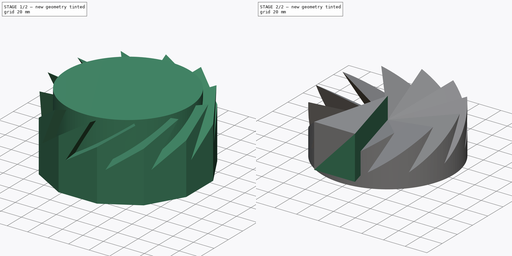
[diagram: build sequence overview — one tinted view per stage of 2, left to right]
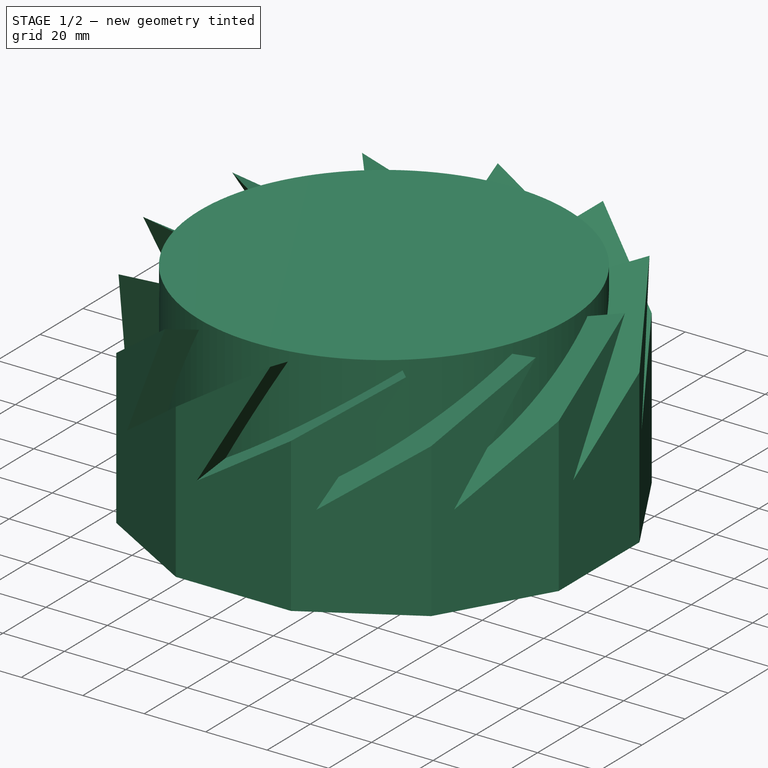
[diagram: stage 1 of 2 — iso view after this stage's code; geometry added in this stage tinted green]
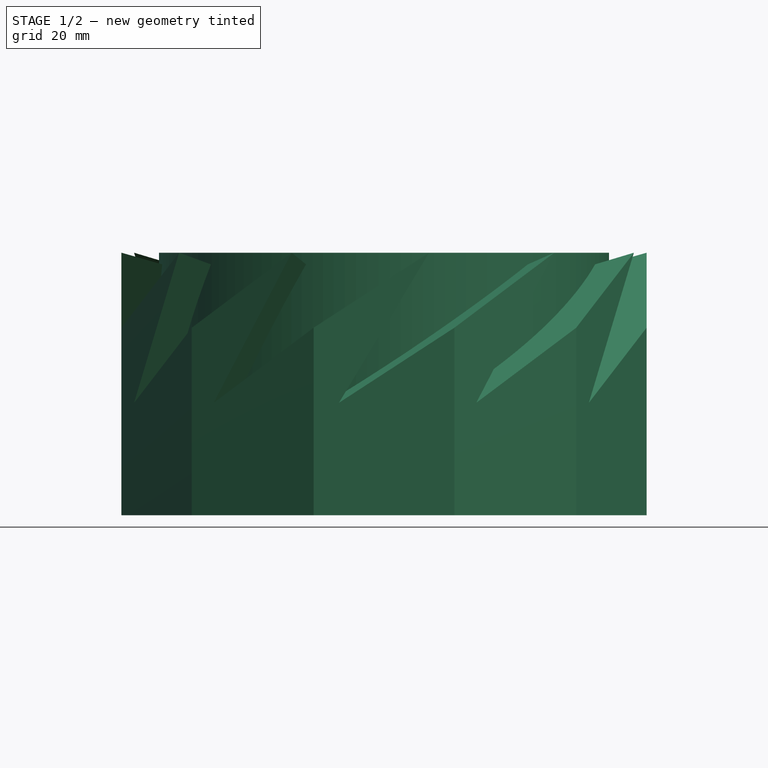
[diagram: stage 1 of 2 — front view after this stage's code; geometry added in this stage tinted green]
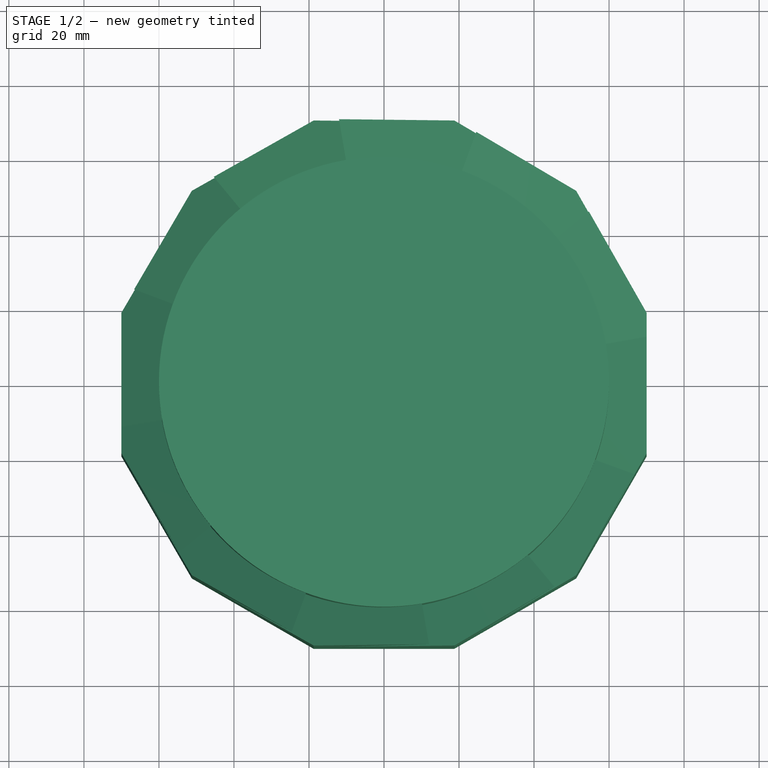
[diagram: stage 1 of 2 — top view after this stage's code; geometry added in this stage tinted green]
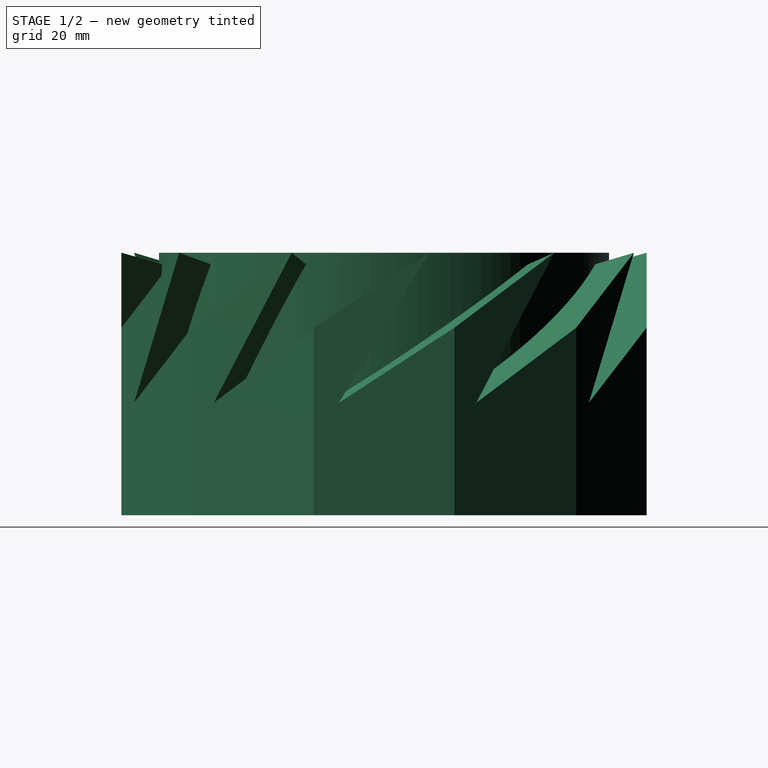
[diagram: stage 1 of 2 — right view after this stage's code; geometry added in this stage tinted green]
FCSTD DOCUMENT  (FreeCAD 0.16R5747 (Git))
Label: CrownCommon
License: All rights reserved
LicenseURL: http://en.wikipedia.org/wiki/All_rights_reserved
objects: Part::Part2DObjectPython×6, Part::Feature×6, Sketcher::SketchObject×2, Part::FeaturePython×2, PartDesign::Pad×1, Part::Loft×1, Part::Cylinder×1, Part::MultiCommon×1
note: 21 computed .brp shape members not serialized (recipe doc carries the construction recipe); baked Part::Feature solids carry a one-line shape summary decoded from their .brp

FEATURE [Sketcher::SketchObject] Sketch001
  ExternalGeometry = -> [Pad]
  Placement = pos=(0,-70,0) rot=(1,0,0;1.5708rad)
  Support = -> Pad [Face2]
  sketch-geometry (3):
    g0: LineSegment StartX=-18.7564 StartY=0 StartZ=0 EndX=12 EndY=20 EndZ=0
    g1: LineSegment StartX=12 StartY=20 StartZ=0 EndX=-12 EndY=-20 EndZ=0
    g2: LineSegment StartX=-12 StartY=-20 StartZ=0 EndX=18.7564 EndY=0 EndZ=0
  constraints (7):
    c: Coincident(g0,g1)
    c: Coincident(g1,g2)
    c: Symmetric(g-3,g-3,g0)
    c: Symmetric(g-4,g-4,g2)
    c: Symmetric(g0,g1,g-1)
    c: PointOnObject(g1,g-5)
    c: DistanceX(g-1,g0) = 12
FEATURE [Part::FeaturePython] Point  # WARN: FeaturePython — macro-defined, semantics opaque (R4)
  X = 0
  Y = 0
  Z = 0
FEATURE [Part::Loft] Loft
  Closed = false
  Ruled = true
  Sections = -> [Sketch001,Point]
  Solid = false
FEATURE [Part::Part2DObjectPython] Line  # Draft 2D object (typed FeaturePython)
  ChamferSize = 0
  Closed = false
  End = (-18.7564,-70,-50)
  FilletRadius = 0
  Length = 50
  MakeFace = false
  Points = (2) [(-18.7564,-70,-6.66134e-16),(-18.7564,-70,-50)]
  Start = (-18.7564,-70,0)
FEATURE [Part::Part2DObjectPython] Line001  # Draft 2D object (typed FeaturePython)
  ChamferSize = 0
  Closed = false
  End = (18.7564,-70,-50)
  FilletRadius = 0
  Length = 50
  MakeFace = false
  Points = (2) [(18.7564,-70,3.55271e-15),(18.7564,-70,-50)]
  Start = (18.7564,-70,0)
FEATURE [Part::Part2DObjectPython] Line002  # Draft 2D object (typed FeaturePython)
  ChamferSize = 0
  Closed = false
  End = (18.7564,-70,-50)
  FilletRadius = 0
  Length = 37.5129
  MakeFace = false
  Points = (2) [(-18.7564,-70,-50),(18.7564,-70,-50)]
  Start = (-18.7564,-70,-50)
FEATURE [Part::Part2DObjectPython] Line003  # Draft 2D object (typed FeaturePython)
  ChamferSize = 0
  Closed = false
  End = (0,0,-50)
  FilletRadius = 0
  Length = 50
  MakeFace = false
  Points = (2) [(-7.10543e-15,0,0),(-7.10543e-15,0,-50)]
  Start = (0,0,0)
FEATURE [Part::Part2DObjectPython] Line004  # Draft 2D object (typed FeaturePython)
  ChamferSize = 0
  Closed = false
  End = (-18.7564,-70,-50)
  FilletRadius = 0
  Length = 72.4693
  MakeFace = false
  Points = (2) [(-7.10543e-15,0,-50),(-18.7564,-70,-50)]
  Start = (0,0,-50)
FEATURE [Part::Part2DObjectPython] Line005  # Draft 2D object (typed FeaturePython)
  ChamferSize = 0
  Closed = false
  End = (18.7564,-70,-50)
  FilletRadius = 0
  Length = 72.4693
  MakeFace = false
  Points = (2) [(-7.10543e-15,0,-50),(18.7564,-70,-50)]
  Start = (0,0,-50)
FEATURE [Part::Feature] Face
  shape: bbox 37.51 x 2e-07 x 70 mm, 1 faces, 0 solids (baked)
FEATURE [Part::Feature] Face001
  shape: bbox 37.51 x 70 x 2e-07 mm, 1 faces, 0 solids (baked)
FEATURE [Part::Feature] Face002
  shape: bbox 18.76 x 70 x 50 mm, 1 faces, 0 solids (baked)
FEATURE [Part::Feature] Face003
  shape: bbox 18.76 x 70 x 50 mm, 1 faces, 0 solids (baked)
FEATURE [Part::Feature] Shell
  shape: bbox 37.51 x 70 x 70 mm, 7 faces, 0 solids (baked)
FEATURE [Part::Feature] Solid
  shape: bbox 37.51 x 70 x 70 mm, 7 faces (baked)
FEATURE [Part::FeaturePython] Array  # Draft array (typed FeaturePython)
  Angle = 360
  ArrayType = 1
  Axis = (0,0,1)
  Base = -> Solid
  Center = (0,0,0)
  Fuse = true
  IntervalAxis = (0,0,0)
  IntervalX = (1,0,0)
  IntervalY = (0,1,0)
  IntervalZ = (0,0,0)
  NumberPolar = 12
  NumberX = 2
  NumberY = 2
  NumberZ = 1
FEATURE [Part::Cylinder] Cylinder
  Angle = 360
  Height = 50
  Placement = pos=(0,0,-30) rot=(0,0,1;0rad)
  Radius = 60
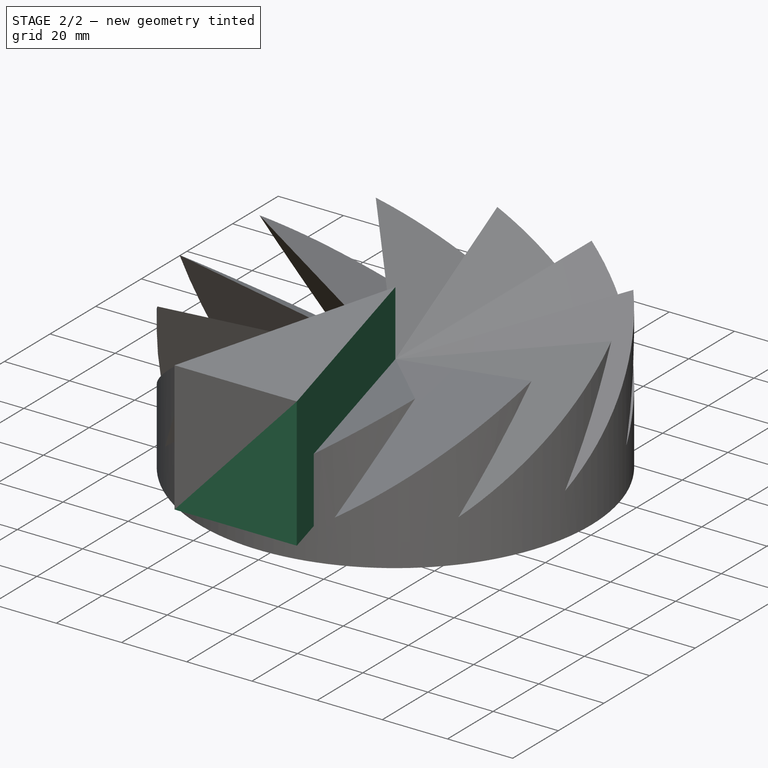
[diagram: stage 2 of 2 — iso view after this stage's code; geometry added in this stage tinted green]
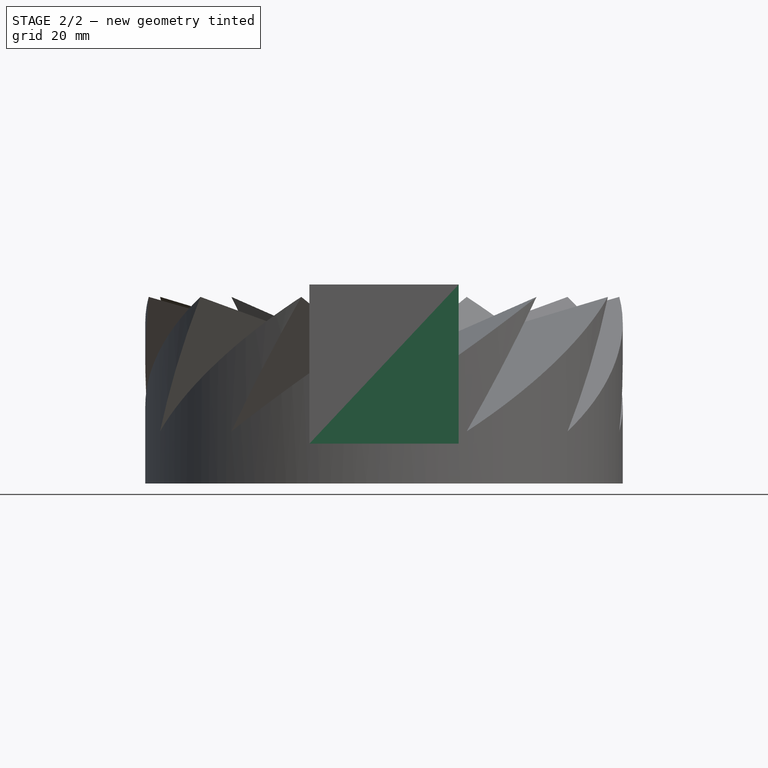
[diagram: stage 2 of 2 — front view after this stage's code; geometry added in this stage tinted green]
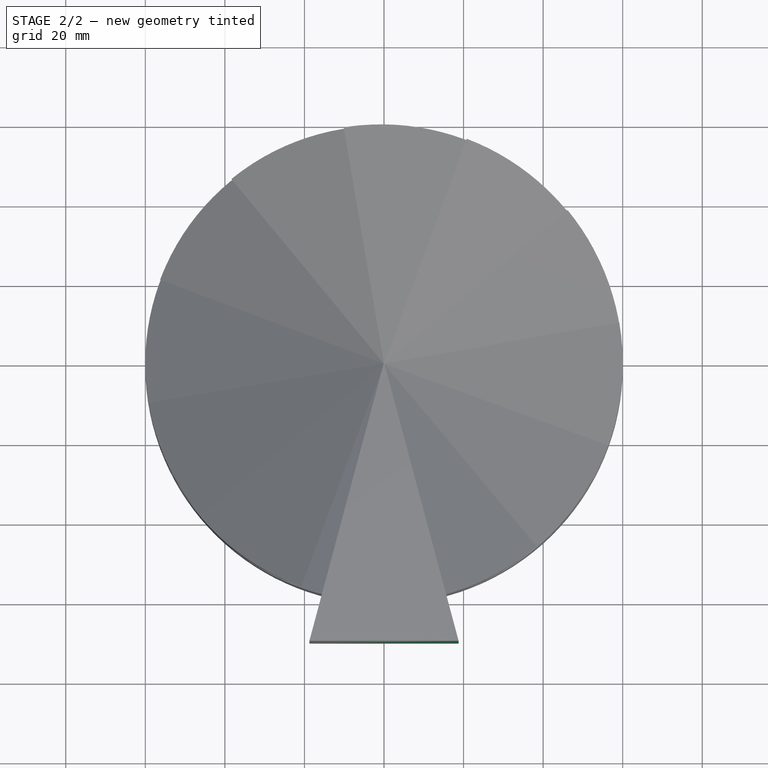
[diagram: stage 2 of 2 — top view after this stage's code; geometry added in this stage tinted green]
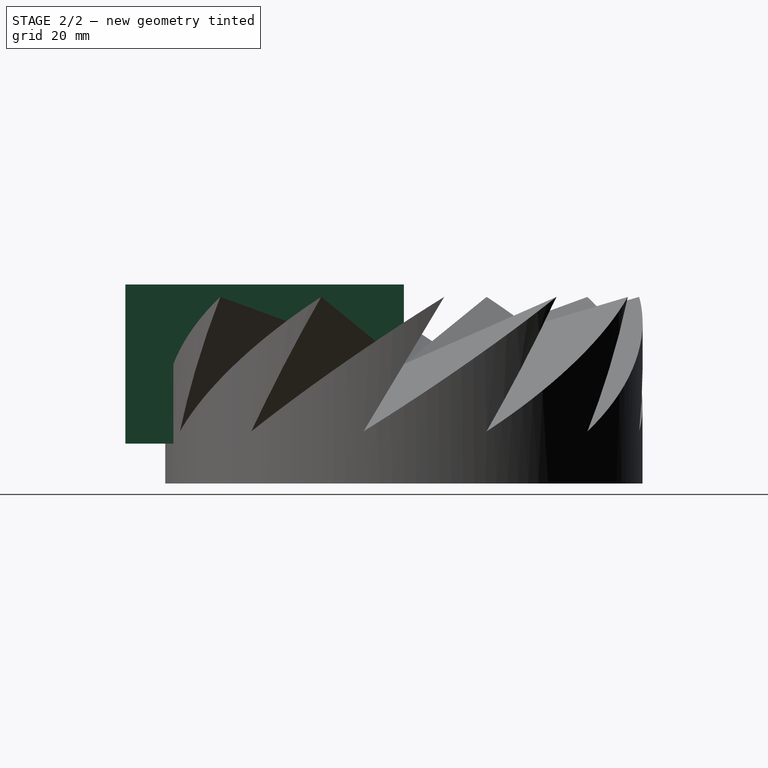
[diagram: stage 2 of 2 — right view after this stage's code; geometry added in this stage tinted green]
FEATURE [Sketcher::SketchObject] Sketch
  sketch-geometry (3):
    g0: LineSegment StartX=0 StartY=0 StartZ=0 EndX=-18.7564 EndY=-70 EndZ=0
    g1: LineSegment StartX=-18.7564 StartY=-70 StartZ=0 EndX=18.7564 EndY=-70 EndZ=0
    g2: LineSegment StartX=18.7564 StartY=-70 StartZ=0 EndX=0 EndY=0 EndZ=0
  constraints (8):
    c: Coincident(g0,g-1)
    c: Coincident(g1,g0)
    c: Horizontal(g1)
    c: Coincident(g2,g1)
    c: Coincident(g2,g-1)
    c: Symmetric(g0,g1,g-2)
    c: DistanceY(g-1,g1) = -70
    c: Angle(g1,g0) = 1.309
FEATURE [PartDesign::Pad] Pad
  Length = 40
  Length2 = 100
  Midplane = true
  Sketch = -> Sketch
  Type = 0
FEATURE [Part::MultiCommon] Common
  Shapes = -> [Array,Cylinder]
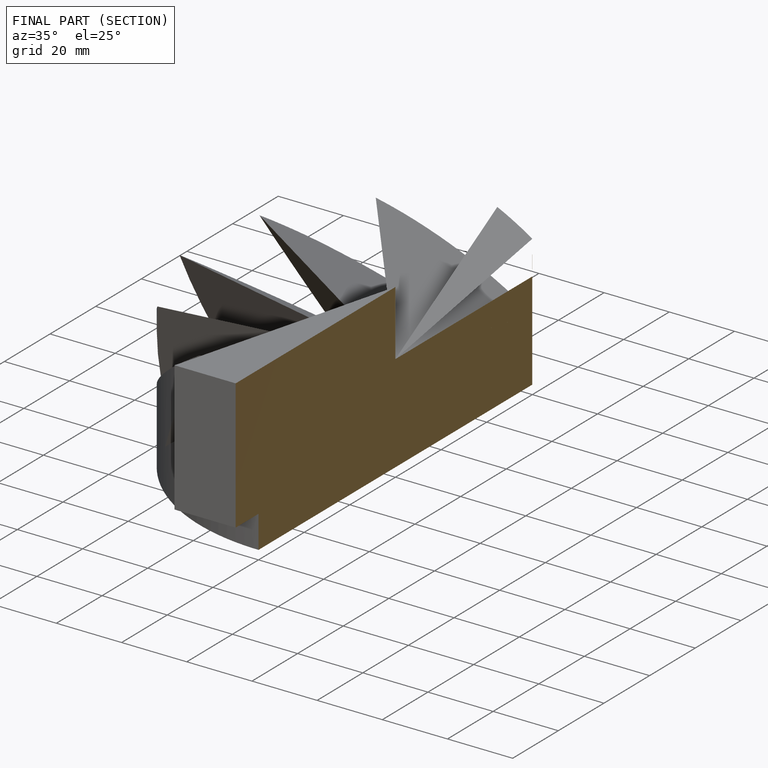
[diagram: finished part — half-section view (interior)]
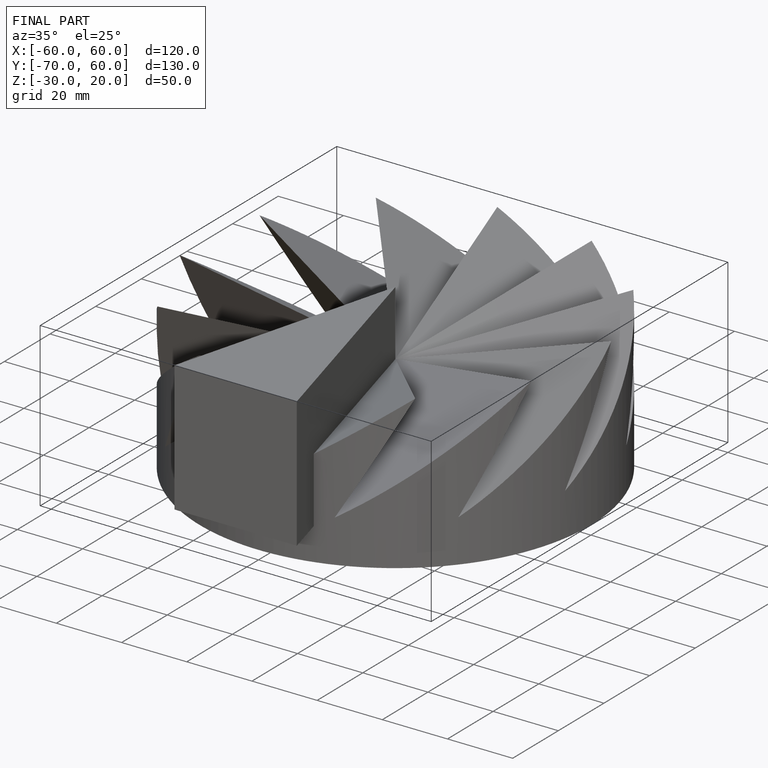
[diagram: finished part — iso view with bounding-box wireframe]
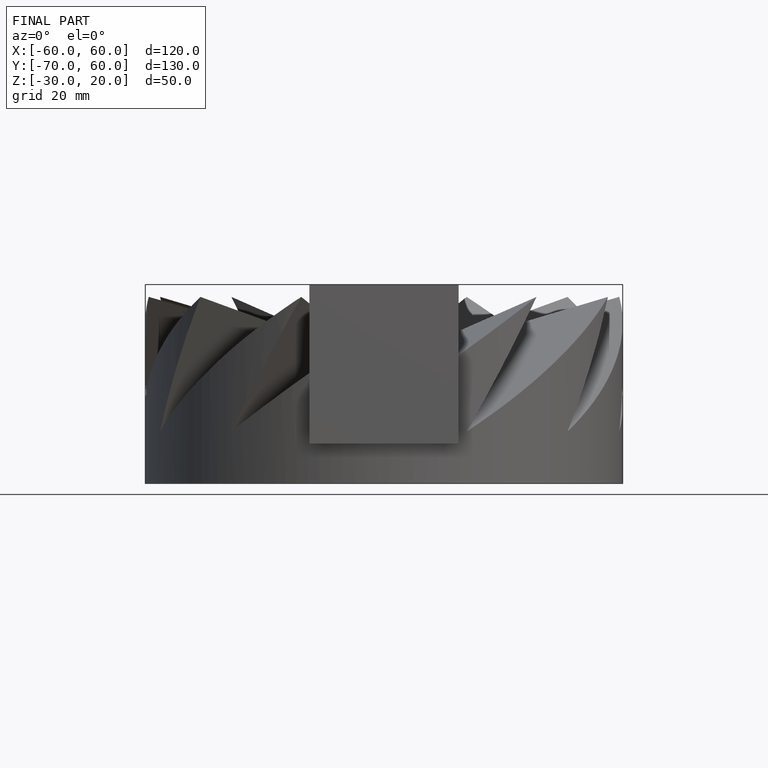
[diagram: finished part — front view with bounding-box wireframe]
